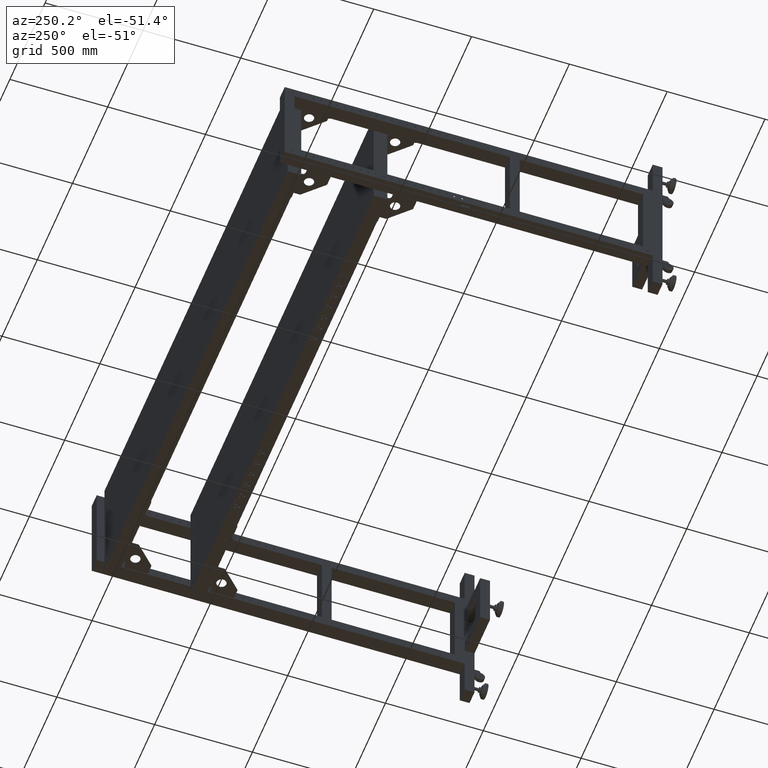
[diagram: clean part render]
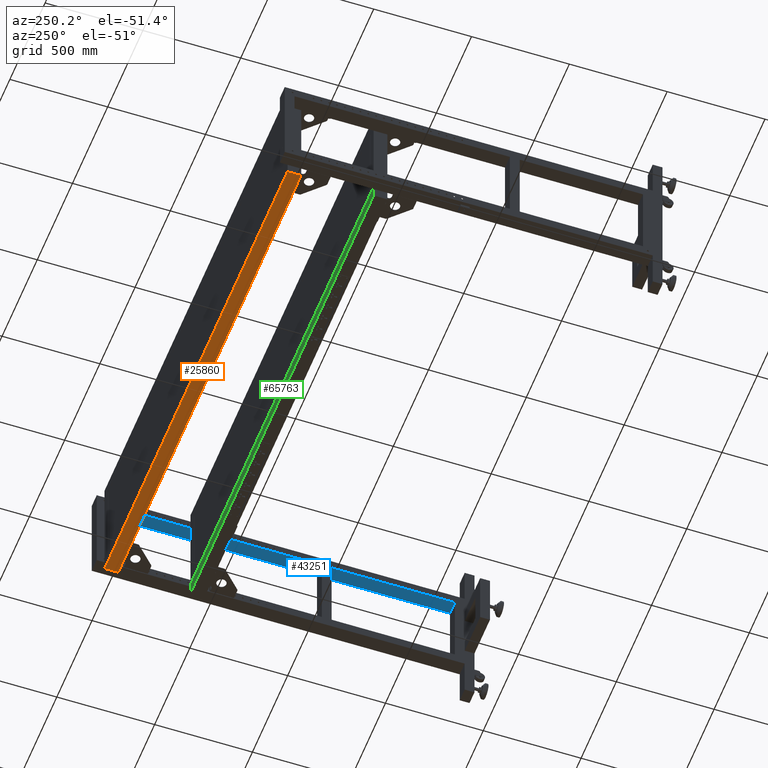
[diagram: same view with three faces highlighted in distinct colors, each labeled with its STEP entity id]
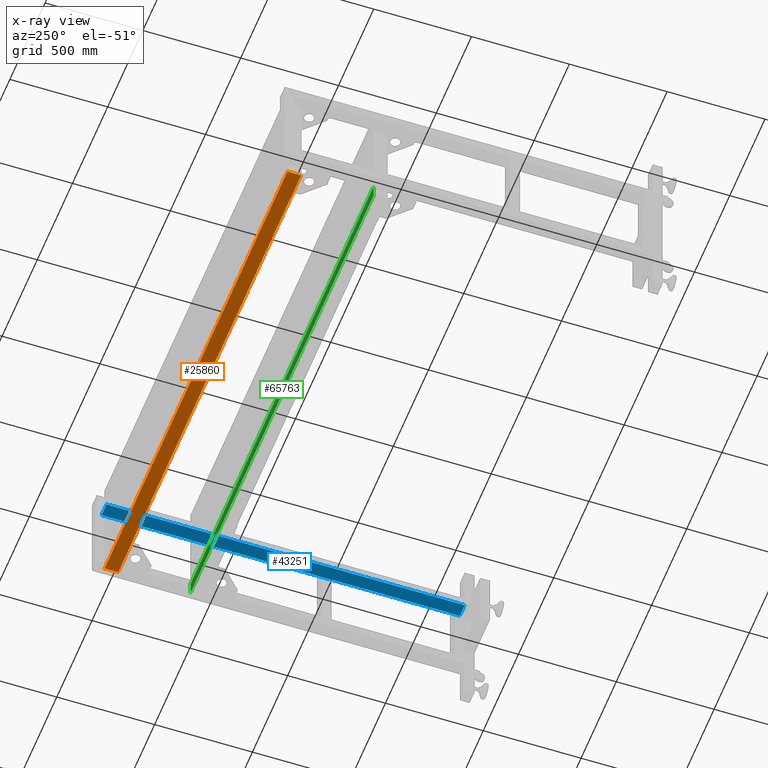
[diagram: x-ray of the same camera — body ghosted, the three highlighted faces saturated]
A machine part, auxiliary view with three faces highlighted in distinct colors.
The next image is the same camera in x-ray (body ghosted, the three faces saturated) — at least one of them is partly hidden behind the body in this view.
Their STEP definitions:

[orange] entity #25860 — the highlighted planar face has unit normal (0, -0, 1).
#2319 = ORIENTED_EDGE ( 'NONE', *, *, #35087, .T. ) ;
#2851 = CARTESIAN_POINT ( 'NONE',  ( -1266.172487437185964, 926.9410804020142223, -299.9999999999991473 ) ) ;
#4838 = ORIENTED_EDGE ( 'NONE', *, *, #59311, .F. ) ;
#4972 = LINE ( 'NONE', #10615, #20013 ) ;
#6035 = DIRECTION ( 'NONE',  ( -2.399989573374237993E-16, 1.000000000000000000, 3.603491776919587486E-15 ) ) ;
#8450 = LINE ( 'NONE', #2851, #78726 ) ;
#8469 = EDGE_CURVE ( 'NONE', #31638, #18873, #4972, .T. ) ;
#9284 = DIRECTION ( 'NONE',  ( 0.000000000000000000, -1.000000000000000000, -3.603491776919587486E-15 ) ) ;
#10360 = VECTOR ( 'NONE', #59144, 1000.000000000000000 ) ;
#10615 = CARTESIAN_POINT ( 'NONE',  ( 1329.827512562815855, 926.9410804020144496, -299.9999999999991473 ) ) ;
#13412 = CARTESIAN_POINT ( 'NONE',  ( -1266.172487437185964, 926.9410804020142223, -299.9999999999991473 ) ) ;
#13706 = AXIS2_PLACEMENT_3D ( 'NONE', #35812, #72412, #6035 ) ;
#16031 = VERTEX_POINT ( 'NONE', #47181 ) ;
#16642 = ORIENTED_EDGE ( 'NONE', *, *, #8469, .T. ) ;
#16878 = LINE ( 'NONE', #65974, #10360 ) ;
#18873 = VERTEX_POINT ( 'NONE', #45914 ) ;
#20013 = VECTOR ( 'NONE', #35142, 1000.000000000000000 ) ;
#22950 = CARTESIAN_POINT ( 'NONE',  ( 1329.827512562815855, 926.9410804020144496, -299.9999999999991473 ) ) ;
#25222 = EDGE_LOOP ( 'NONE', ( #41461, #16642, #2319, #4838 ) ) ;
#25860 = ADVANCED_FACE ( 'NONE', ( #48259 ), #41825, .F. ) ;
#29291 = EDGE_CURVE ( 'NONE', #31638, #16031, #16878, .T. ) ;
#31638 = VERTEX_POINT ( 'NONE', #32924 ) ;
#32924 = CARTESIAN_POINT ( 'NONE',  ( 1329.827512562815855, 996.9410804020143360, -299.9999999999988631 ) ) ;
#35049 = LINE ( 'NONE', #22950, #67596 ) ;
#35087 = EDGE_CURVE ( 'NONE', #18873, #42024, #35049, .T. ) ;
#35142 = DIRECTION ( 'NONE',  ( 2.399989573374237993E-16, -1.000000000000000000, -3.603491776919587486E-15 ) ) ;
#35812 = CARTESIAN_POINT ( 'NONE',  ( 1329.827512562815855, 926.9410804020144496, -299.9999999999991473 ) ) ;
#41461 = ORIENTED_EDGE ( 'NONE', *, *, #29291, .F. ) ;
#41825 = PLANE ( 'NONE',  #13706 ) ;
#42024 = VERTEX_POINT ( 'NONE', #13412 ) ;
#45914 = CARTESIAN_POINT ( 'NONE',  ( 1329.827512562815855, 926.9410804020144496, -299.9999999999991473 ) ) ;
#47181 = CARTESIAN_POINT ( 'NONE',  ( -1266.172487437185964, 996.9410804020139949, -299.9999999999988631 ) ) ;
#48259 = FACE_OUTER_BOUND ( 'NONE', #25222, .T. ) ;
#50585 = DIRECTION ( 'NONE',  ( -1.000000000000000000, -2.399989573374237993E-16, 0.000000000000000000 ) ) ;
#59144 = DIRECTION ( 'NONE',  ( -1.000000000000000000, -2.399989573374237993E-16, 0.000000000000000000 ) ) ;
#59311 = EDGE_CURVE ( 'NONE', #16031, #42024, #8450, .T. ) ;
#65974 = CARTESIAN_POINT ( 'NONE',  ( 1329.827512562815855, 996.9410804020143360, -299.9999999999988631 ) ) ;
#67596 = VECTOR ( 'NONE', #50585, 1000.000000000000000 ) ;
#72412 = DIRECTION ( 'NONE',  ( 8.648342692346816226E-31, -3.603491776919587486E-15, 1.000000000000000000 ) ) ;
#78726 = VECTOR ( 'NONE', #9284, 1000.000000000000000 ) ;

[blue] entity #43251 — the highlighted planar face has unit normal (0, 0, 1).
#110 = CARTESIAN_POINT ( 'NONE',  ( 1401.827512562815627, 986.4410804020112664, 199.9999999999999716 ) ) ;
#497 = DIRECTION ( 'NONE',  ( 1.000000000000000000, 2.399989573374237993E-16, 0.000000000000000000 ) ) ;
#3082 = CARTESIAN_POINT ( 'NONE',  ( 1331.827512562814945, 919.4410804020138812, 199.9999999999999716 ) ) ;
#3827 = VECTOR ( 'NONE', #497, 1000.000000000000000 ) ;
#4071 = VERTEX_POINT ( 'NONE', #5924 ) ;
#4431 = DIRECTION ( 'NONE',  ( 1.239998957337423680E-15, -1.000000000000000000, -0.000000000000000000 ) ) ;
#4498 = ORIENTED_EDGE ( 'NONE', *, *, #37969, .F. ) ;
#5924 = CARTESIAN_POINT ( 'NONE',  ( 1331.827512562815855, 926.9410804020114938, 199.9999999999999716 ) ) ;
#6419 = ORIENTED_EDGE ( 'NONE', *, *, #34443, .F. ) ;
#6875 = EDGE_CURVE ( 'NONE', #38343, #54134, #64501, .T. ) ;
#7295 = DIRECTION ( 'NONE',  ( -1.000000000000000000, -2.399989573374237993E-16, 0.000000000000000000 ) ) ;
#7702 = CARTESIAN_POINT ( 'NONE',  ( 1401.827512562814718, 986.4410804020139949, 199.9999999999999716 ) ) ;
#10184 = ORIENTED_EDGE ( 'NONE', *, *, #17324, .T. ) ;
#12931 = DIRECTION ( 'NONE',  ( 0.000000000000000000, 0.000000000000000000, 1.000000000000000000 ) ) ;
#14273 = VECTOR ( 'NONE', #45112, 1000.000000000000000 ) ;
#15808 = DIRECTION ( 'NONE',  ( 1.239998957337423680E-15, -1.000000000000000000, -0.000000000000000000 ) ) ;
#16348 = EDGE_CURVE ( 'NONE', #54134, #78087, #20153, .T. ) ;
#16806 = VERTEX_POINT ( 'NONE', #3082 ) ;
#17324 = EDGE_CURVE ( 'NONE', #77621, #38343, #79339, .T. ) ;
#17813 = VECTOR ( 'NONE', #66758, 1000.000000000000000 ) ;
#19551 = LINE ( 'NONE', #26354, #17813 ) ;
#20153 = LINE ( 'NONE', #44692, #14273 ) ;
#20289 = ORIENTED_EDGE ( 'NONE', *, *, #16348, .T. ) ;
#22120 = LINE ( 'NONE', #41786, #36007 ) ;
#23416 = LINE ( 'NONE', #74064, #60975 ) ;
#23553 = CARTESIAN_POINT ( 'NONE',  ( 1331.811469511923633, 926.9410804020114938, 199.9999999999999716 ) ) ;
#24013 = CARTESIAN_POINT ( 'NONE',  ( 1331.811469511923633, 919.4410804020138812, 199.9999999999999716 ) ) ;
#26354 = CARTESIAN_POINT ( 'NONE',  ( 1331.827512562815400, -844.5589195979886199, 199.9999999999999716 ) ) ;
#29226 = EDGE_CURVE ( 'NONE', #47712, #71265, #22120, .T. ) ;
#30280 = VECTOR ( 'NONE', #15808, 1000.000000000000000 ) ;
#30370 = LINE ( 'NONE', #65937, #63703 ) ;
#34443 = EDGE_CURVE ( 'NONE', #4071, #47712, #30370, .T. ) ;
#36007 = VECTOR ( 'NONE', #4431, 1000.000000000000000 ) ;
#36127 = ORIENTED_EDGE ( 'NONE', *, *, #29226, .F. ) ;
#37842 = PLANE ( 'NONE',  #55586 ) ;
#37969 = EDGE_CURVE ( 'NONE', #71265, #16806, #75956, .T. ) ;
#38309 = VECTOR ( 'NONE', #45746, 1000.000000000000000 ) ;
#38343 = VERTEX_POINT ( 'NONE', #52460 ) ;
#39478 = CARTESIAN_POINT ( 'NONE',  ( 1331.827512562815855, 986.4410804020138812, 199.9999999999999716 ) ) ;
#41786 = CARTESIAN_POINT ( 'NONE',  ( 1331.811469511923633, 986.4410804020139949, 199.9999999999999716 ) ) ;
#43251 = ADVANCED_FACE ( 'NONE', ( #62390 ), #37842, .F. ) ;
#44692 = CARTESIAN_POINT ( 'NONE',  ( 1401.827512562815173, -844.5589195979886199, 199.9999999999999716 ) ) ;
#44747 = ORIENTED_EDGE ( 'NONE', *, *, #6875, .T. ) ;
#45112 = DIRECTION ( 'NONE',  ( -1.000000000000000000, -2.399989573374237993E-16, 0.000000000000000000 ) ) ;
#45746 = DIRECTION ( 'NONE',  ( 1.000000000000000000, 1.825668435714245539E-15, 0.000000000000000000 ) ) ;
#47712 = VERTEX_POINT ( 'NONE', #23553 ) ;
#52460 = CARTESIAN_POINT ( 'NONE',  ( 1401.827512562815627, 986.4410804020112664, 199.9999999999999716 ) ) ;
#52684 = EDGE_LOOP ( 'NONE', ( #10184, #44747, #20289, #71317, #4498, #36127, #6419, #55525 ) ) ;
#54134 = VERTEX_POINT ( 'NONE', #56185 ) ;
#54922 = DIRECTION ( 'NONE',  ( -1.000000000000000000, -6.848874450248458040E-16, 0.000000000000000000 ) ) ;
#55525 = ORIENTED_EDGE ( 'NONE', *, *, #61394, .F. ) ;
#55586 = AXIS2_PLACEMENT_3D ( 'NONE', #7702, #12931, #7295 ) ;
#56185 = CARTESIAN_POINT ( 'NONE',  ( 1401.827512562815173, -844.5589195979886199, 199.9999999999999716 ) ) ;
#58698 = CARTESIAN_POINT ( 'NONE',  ( 1331.827512562815400, -844.5589195979886199, 199.9999999999999716 ) ) ;
#60975 = VECTOR ( 'NONE', #72881, 1000.000000000000000 ) ;
#61394 = EDGE_CURVE ( 'NONE', #77621, #4071, #23416, .T. ) ;
#62390 = FACE_OUTER_BOUND ( 'NONE', #52684, .T. ) ;
#63703 = VECTOR ( 'NONE', #54922, 1000.000000000000000 ) ;
#64501 = LINE ( 'NONE', #76540, #30280 ) ;
#65937 = CARTESIAN_POINT ( 'NONE',  ( 1331.827512562815855, 926.9410804020114938, 199.9999999999999716 ) ) ;
#66758 = DIRECTION ( 'NONE',  ( -2.399989573374237993E-16, 1.000000000000000000, 0.000000000000000000 ) ) ;
#68710 = CARTESIAN_POINT ( 'NONE',  ( 1401.827512562814718, 919.4410804020139949, 199.9999999999999716 ) ) ;
#71265 = VERTEX_POINT ( 'NONE', #24013 ) ;
#71317 = ORIENTED_EDGE ( 'NONE', *, *, #76839, .T. ) ;
#72881 = DIRECTION ( 'NONE',  ( 1.239998957337423877E-15, -1.000000000000000000, 0.000000000000000000 ) ) ;
#74064 = CARTESIAN_POINT ( 'NONE',  ( 1331.827512562815855, 996.9410804020112664, 199.9999999999999716 ) ) ;
#75956 = LINE ( 'NONE', #68710, #38309 ) ;
#76540 = CARTESIAN_POINT ( 'NONE',  ( 1401.827512562814718, 986.4410804020139949, 199.9999999999999716 ) ) ;
#76839 = EDGE_CURVE ( 'NONE', #78087, #16806, #19551, .T. ) ;
#77621 = VERTEX_POINT ( 'NONE', #39478 ) ;
#78087 = VERTEX_POINT ( 'NONE', #58698 ) ;
#79339 = LINE ( 'NONE', #110, #3827 ) ;

[green] entity #65763 — the highlighted planar face has unit normal (0, -1, -0).
#218 = ORIENTED_EDGE ( 'NONE', *, *, #53464, .T. ) ;
#224 = CARTESIAN_POINT ( 'NONE',  ( 1329.827512562815855, 556.9410804020127443, -229.9999999999998863 ) ) ;
#1736 = VERTEX_POINT ( 'NONE', #224 ) ;
#2479 = CARTESIAN_POINT ( 'NONE',  ( 1329.827512562815855, 556.9410804020127443, -229.9999999999998863 ) ) ;
#12120 = VERTEX_POINT ( 'NONE', #31108 ) ;
#12388 = VECTOR ( 'NONE', #25430, 1000.000000000000000 ) ;
#14660 = VECTOR ( 'NONE', #57211, 1000.000000000000000 ) ;
#15335 = PLANE ( 'NONE',  #74272 ) ;
#15381 = CARTESIAN_POINT ( 'NONE',  ( 1329.827512562815855, 556.9410804020127443, -229.9999999999998863 ) ) ;
#21091 = EDGE_LOOP ( 'NONE', ( #46877, #76786, #218, #26524 ) ) ;
#23197 = LINE ( 'NONE', #77919, #25489 ) ;
#25430 = DIRECTION ( 'NONE',  ( -1.000000000000000000, -2.399989573374237993E-16, 0.000000000000000000 ) ) ;
#25489 = VECTOR ( 'NONE', #59045, 1000.000000000000000 ) ;
#26524 = ORIENTED_EDGE ( 'NONE', *, *, #38112, .F. ) ;
#30807 = CARTESIAN_POINT ( 'NONE',  ( 1329.827512562815855, 556.9410804020127443, -229.9999999999998863 ) ) ;
#31108 = CARTESIAN_POINT ( 'NONE',  ( 1329.827512562815855, 556.9410804020129717, -299.9999999999999432 ) ) ;
#31462 = LINE ( 'NONE', #56009, #12388 ) ;
#37118 = CARTESIAN_POINT ( 'NONE',  ( -1266.172487437185964, 556.9410804020126307, -299.9999999999999432 ) ) ;
#37316 = VERTEX_POINT ( 'NONE', #60010 ) ;
#38112 = EDGE_CURVE ( 'NONE', #37316, #48181, #23197, .T. ) ;
#39070 = DIRECTION ( 'NONE',  ( -7.199968720122713773E-31, 2.999999999999999839E-15, -1.000000000000000000 ) ) ;
#43673 = DIRECTION ( 'NONE',  ( -7.199968720122713773E-31, 2.999999999999999839E-15, -1.000000000000000000 ) ) ;
#46877 = ORIENTED_EDGE ( 'NONE', *, *, #49556, .F. ) ;
#48181 = VERTEX_POINT ( 'NONE', #37118 ) ;
#49556 = EDGE_CURVE ( 'NONE', #1736, #37316, #70897, .T. ) ;
#52429 = VECTOR ( 'NONE', #43673, 1000.000000000000000 ) ;
#53464 = EDGE_CURVE ( 'NONE', #12120, #48181, #31462, .T. ) ;
#54489 = EDGE_CURVE ( 'NONE', #1736, #12120, #55357, .T. ) ;
#55357 = LINE ( 'NONE', #30807, #52429 ) ;
#56009 = CARTESIAN_POINT ( 'NONE',  ( 1329.827512562815855, 556.9410804020129717, -299.9999999999999432 ) ) ;
#57211 = DIRECTION ( 'NONE',  ( -1.000000000000000000, -2.399989573374237993E-16, 0.000000000000000000 ) ) ;
#59045 = DIRECTION ( 'NONE',  ( 0.000000000000000000, 2.999999999999999839E-15, -1.000000000000000000 ) ) ;
#60010 = CARTESIAN_POINT ( 'NONE',  ( -1266.172487437185964, 556.9410804020124033, -229.9999999999998863 ) ) ;
#64011 = DIRECTION ( 'NONE',  ( 2.399989573374237993E-16, -1.000000000000000000, -2.999999999999999839E-15 ) ) ;
#65763 = ADVANCED_FACE ( 'NONE', ( #77286 ), #15335, .F. ) ;
#70897 = LINE ( 'NONE', #15381, #14660 ) ;
#74272 = AXIS2_PLACEMENT_3D ( 'NONE', #2479, #64011, #39070 ) ;
#76786 = ORIENTED_EDGE ( 'NONE', *, *, #54489, .T. ) ;
#77286 = FACE_OUTER_BOUND ( 'NONE', #21091, .T. ) ;
#77919 = CARTESIAN_POINT ( 'NONE',  ( -1266.172487437185964, 556.9410804020124033, -229.9999999999998863 ) ) ;